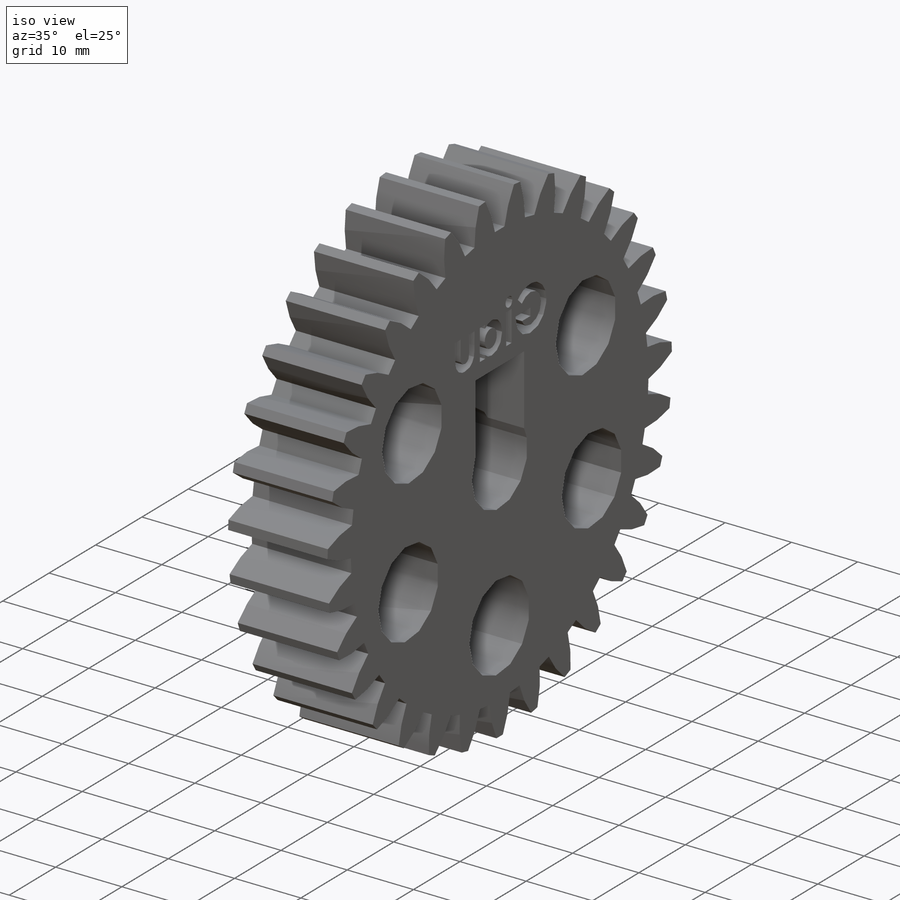
[diagram: iso view]
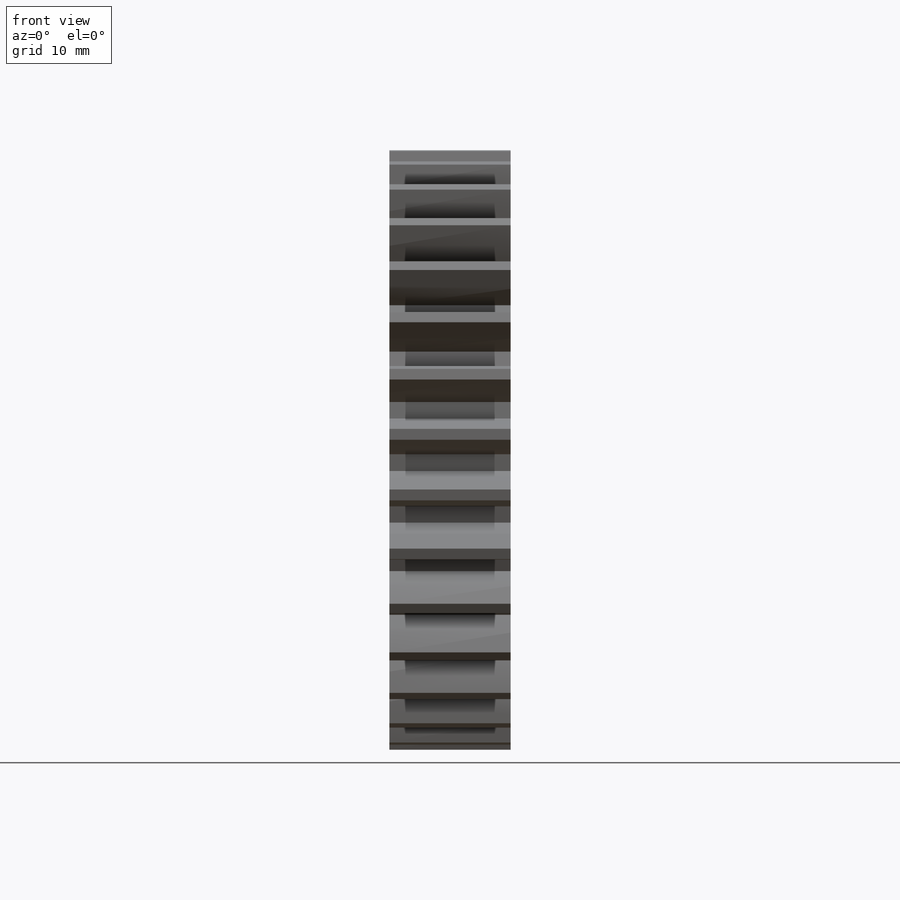
[diagram: front view]
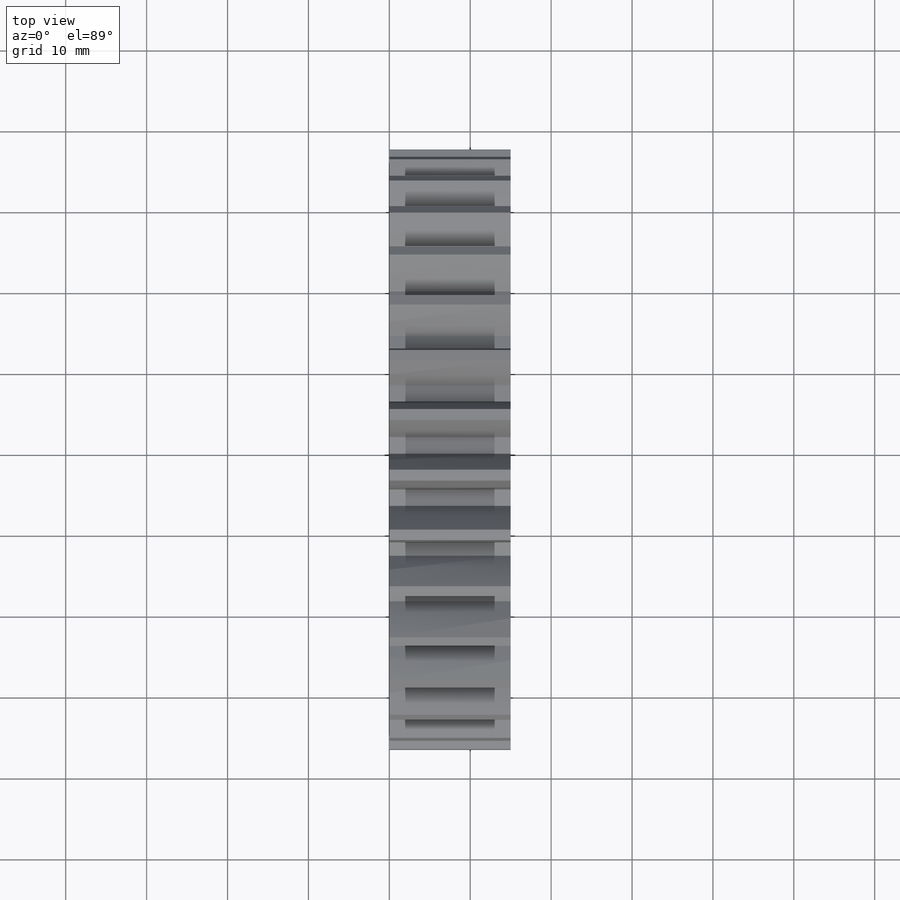
[diagram: top view]
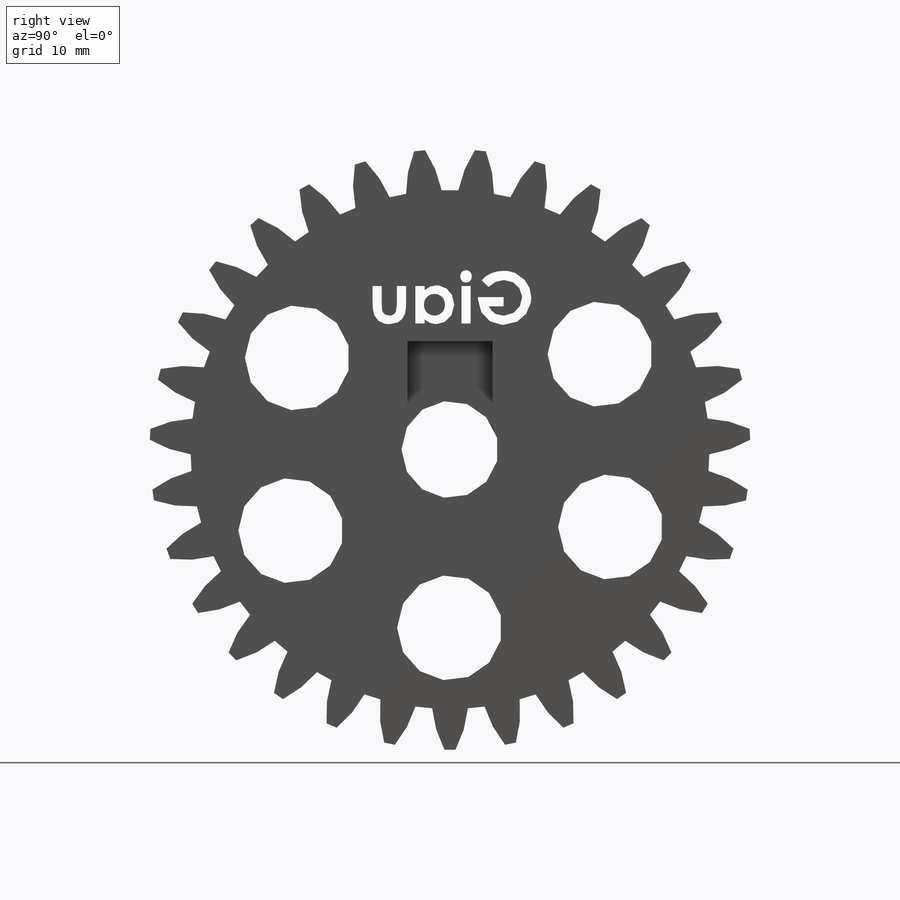
[diagram: right view]
SOLIDWORKS PART (.sldprt)
format: sldprt  version: not decoded by parser v0  size: 1,102,848 bytes
history: native  units: mm
features: sketch x13, cut_extrude x7, plane x4, extrude x3, fillet x2, pattern_circular x2, material x1, revolve x1 (+10 scaffold rows collapsed)
feature tree (43):
  scaffold x10  (default folders/planes/origin — collapsed)
  material  "Material <not specified>"
  plane  "Plane1"
  plane  "Plane2"
  plane  "Plane3"
  sketch  "HoldingSke"  dims[c1.Dr=15.875mm c1.MHD=64.123mm c1.Hub_dia=75.0mm c1.Bore=0.8mm c1.MBD=0.8mm c1.Num_teeth=7.0mm c1.D1=115.0mm c2.Num_teeth=31.0deg c2.Pitch_radius=~46.415395mm c2.Pitch=~0.444444mm c2.Width=8.636mm c2.Chamfer_wid=3.175mm c2.Chamfer_dep=12.7mm c2.Overall_len=50.0mm c2.D1=115.0mm c2.Show_teeth=31.0deg c2.Thickness=15.0mm c2.OAL=~50.000051mm c2.T_dim=0.1mm c3.D1=115.0mm c3.Ap=20.0deg c3.H=19.05mm c3.Pitch_radius=~180.312849mm c3.Width=15.0mm c3.F=44.45mm c3.Backlash=0.077mm c3.Addendum_factor=~25.318689mm c3.Dedendum_factor=~11.91639mm c3.Fillet_factor=5.08mm c4.D1=~180.312849mm c4.Addendum_fac=1.0deg c5.D1=~180.312849mm c5.Dedendum_fac=1.25deg c6.D1=~180.312849mm c6.Clearance_fac=0.25deg c6.Dedendum_add=0.001mm c6.Module=2.25mm c7.D1=50.8mm]
  sketch  "BasProSke"  dims[c1.D2=~57.067268mm c1.D3=~57.067268mm c1.Fillet_rad=0.635mm c1.D1=80.0mm c1.h=15.875mm c2.D2=15.875mm c2.G1=0.635mm c2.G2=0.635mm c2.H2=~13.49375mm c2.Diameter=~80.079479mm c2.H1=~13.49375mm c2.Thickness=15.0mm c3.Diameter=74.25mm c3.MHD=25.4mm c3.D2=12.7mm c4.MHD=25.4mm c4.MHD_radius=12.7mm c5.MHD_radius=12.7mm c5.D1=~92.83079mm c6.D1=45.0deg c6.D2=~92.83079mm c7.D2=45.0deg]
  revolve  "Base-Revolve"  Angle=360deg
  sketch  "TooCutSke"  dims[c1.D1=50.8mm c1.D2=101.6mm c1.R=~8.015287mm c2.D1=~10.148041mm c2.E=~20.715287mm c2.F=~13.61213mm c2.R=15.24mm c2.Db=~91.584948mm c2.H=19.05mm c2.Pitch_radius=~111.396948mm c2.Rt=38.1mm c2.Root_dia=64.123mm c2.Overcut_dia=74.3008mm c2.Pitch_dia=69.75mm c2.Base_dia=~65.54356mm c2.Flank_rad=13.95mm c2.Root_fillet=~1.58877mm c2.D3=45.0mm c3.D3=30.0deg c3.Pitch_radius=~37.132316mm c3.D1=~5.323628mm c3.W=~20.884668mm c3.V=0.762mm c4.V=~7.601398mm c4.D1=107.0mm c5.D1=~11.986918deg c6.D1=6.35mm c6.Ag=66.0deg c6.Cp=3.81mm c7.D1=~9.360719mm c8.D1=19.0deg c9.D1=~4.754529mm c9.Ag=64.0deg c9.L=~2.066544mm c9.Wf=6.858mm c10.D1=~10.255297mm c10.ANGLE=40.0deg c11.D1=~10.255297mm c11.Angle=40.0deg c12.D1=12.7mm c12.D2=~288.740008mm c12.TestA=130.0deg c12.TestL=63.5mm c13.D2=~92.83079mm c13.TestA=70.0deg c13.D1=~14.973046mm c13.Angle=18.0deg c14.D1=~60.512969mm c14.Half_ang=~5.806452deg c14.Half_CT=~1.63164mm c15.D1=31.75mm c15.Pres_ang=14.5deg c15.A=~41.666667deg c15.B=~11.777778deg c15.Angle=40.0deg]
  cut_extrude  "ToothCut"  [1 undecoded]
  fillet  "Breaks"  Radius=0.045mm Break_rad=0.045mm
  fillet  "RootFillets"  Radius=0.5635mm
  pattern_circular  "TeethCuts"  Count=31 Angle=11.612903deg Num_teeth=31
  sketch  "HubNeaOneSke"  dims[Diameter=64.123mm]
  extrude  "HubNearOne"  Depth=35.000051mm Length=35.000051mm
  sketch  "HubNeaBotSke"  dims[Diameter=64.123mm]
  extrude  "HubNearBoth"  Depth=17.500025mm Length=17.500025mm
  plane  "FarPln"  Offset=15mm Thickness=15mm
  sketch  "HubFarSke"  dims[Diameter=64.123mm]
  extrude  "HubFar"  Depth=17.500025mm Length=17.500025mm
  sketch  "BorSke"  dims[Diameter=12.0mm D2=35.0mm D3=12.0mm]
  cut_extrude  "Bore"  Depth=100.000102mm
  sketch  "KeySke"  dims[D1=60.0mm Offset=0.5mm Width=0.1mm]
  cut_extrude  "Keyway"  Depth=100.000102mm
  pattern_circular  "Keyway2"  Count=2 Angle=90deg
  sketch  "Sketch1"
  sketch  "Sketch2"  dims[c1.D1=~10.083318mm c1.D2=12.0mm c1.D4=12.0mm c2.D1=0.0mm c2.D3=6.0mm c2.D4=6.0mm c2.D5=10.5mm c2.D6=10.5mm]
  cut_extrude  "Cut-Extrude1"  Depth=5.5mm
  cut_extrude  "Cut-Extrude3"  [1 undecoded]
  sketch  "Sketch7"
  sketch  "Sketch8"  dims[c1.D1=12.0mm c1.D2=24.0mm c2.D1=0.0mm c2.D2=~12.447991mm]
  cut_extrude  "Cut-Extrude5"  Depth=5.5mm
  sketch  "Sketch10"  dims[D6=13.0mm D7=13.0mm D8=13.0mm D9=13.0mm D10=13.0mm D1=10.0mm D2=10.0mm D3=10.0mm D4=10.0mm D5=10.0mm]
  cut_extrude  "Cut-Extrude6"  [1 undecoded]
decode coverage: 23 of 28 modeling features carry decoded parameters
note: ~ marks probable driven/reference dimensions
note: 3 parameter values undecoded
summary: no parameter record found for 3 features
note: suppression state not decoded; provenance and decode notes live in map.json
